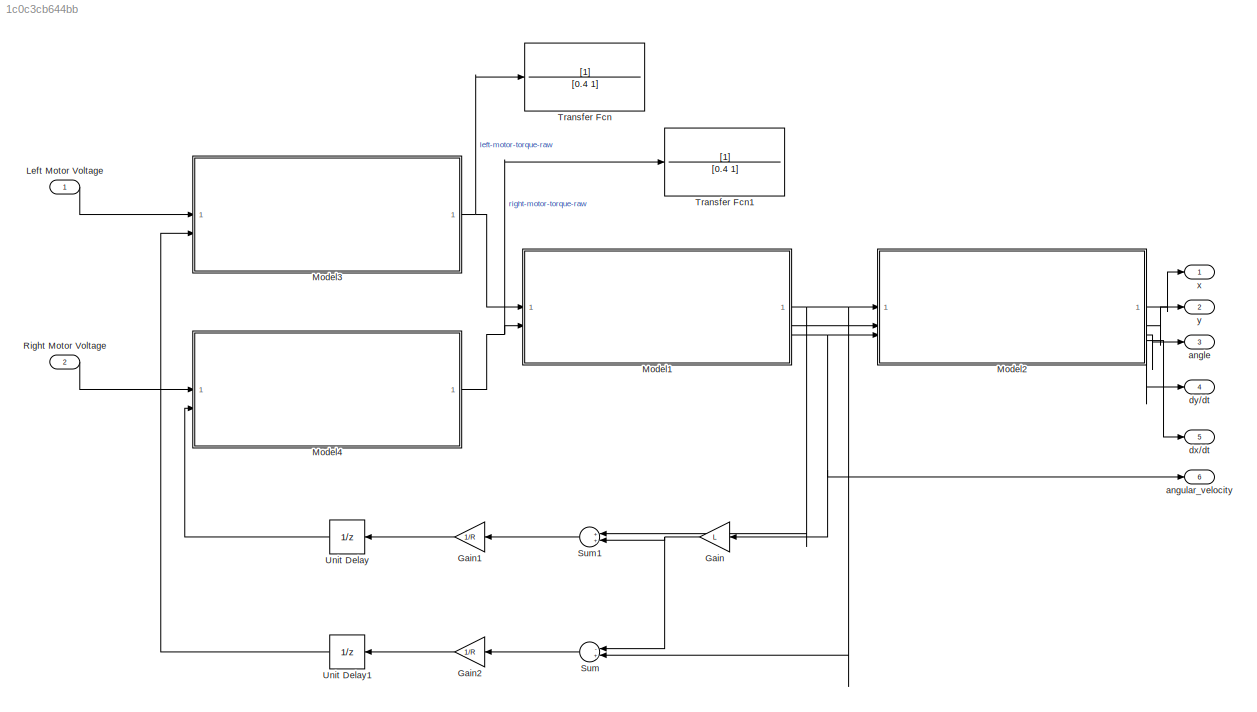
MODEL slx_1c0c3cb644bb
KIND model
CONFIG AbsTol = auto
CONFIG EnableMultiTasking = off
CONFIG FixedStep = 0.01
CONFIG MaxStep = auto
CONFIG MinStep = auto
CONFIG RelTol = 1e-3
CONFIG SampleTimeConstraint = Unconstrained
CONFIG SolverName = VariableStepAuto
CONFIG StartTime = 0.0
CONFIG StopTime = 10.0
BLOCK [Gain] Gain
  Gain = L
  NameLocation = top
BLOCK [Gain] Gain1
  Gain = 1/R
  NameLocation = top
BLOCK [Gain] Gain2
  Gain = 1/R
  NameLocation = top
BLOCK [Inport] Left Motor Voltage
BLOCK [ModelReference] Model1
  ModelNameDialog = DynamicPhysicalModel.slx
  ModelReferenceVersion = 3.4
BLOCK [ModelReference] Model2
  ModelNameDialog = KinematicModel2.slx
  ModelReferenceVersion = 3.2
  PortSchema = {"entries":[{"content":{"sides":[{"content":{"connectorIds":["In1","In2","In3"]},"type":"ConnectorPlacement.EquallySpacedRectSide","uuid":"40e04a13-7a28-418a-9369-3121e9e226aa"},{"content":{"connectorIds":["Out1","Out2","Out3","Out5","Out4"],"side":"RIGHT"},"type":"ConnectorPlacement.EquallySpacedRectSide","uuid":"cc1bc98a-6aae-4b07-b02a-e9b2983d00de"},{"content":{"side":"TOP"},"type":"ConnectorPl...<+262ch>
BLOCK [ModelReference] Model3
  ModelNameDialog = DCMotorModel.slx
  ModelReferenceVersion = 3.3
BLOCK [ModelReference] Model4
  ModelNameDialog = DCMotorModel.slx
  ModelReferenceVersion = 3.3
BLOCK [Inport] Right Motor Voltage
  Port = 2
BLOCK [Sum] Sum
  Inputs = -+|
  NameLocation = top
BLOCK [Sum] Sum1
  Inputs = ++|
  NameLocation = top
BLOCK [TransferFcn] Transfer Fcn
  Denominator = [0.4 1]
BLOCK [TransferFcn] Transfer Fcn1
  Denominator = [0.4 1]
BLOCK [UnitDelay] Unit Delay
  HasFrameUpgradeWarning = on
  SampleTime = -1
BLOCK [UnitDelay] Unit Delay1
  HasFrameUpgradeWarning = on
  SampleTime = -1
BLOCK [Outport] angle
  Port = 3
BLOCK [Outport] angular_velocity
  Port = 6
BLOCK [Outport] dx//dt
  Port = 5
BLOCK [Outport] dy//dt
  Port = 4
BLOCK [Outport] x
BLOCK [Outport] y
  Port = 2
LINE Gain1:1 -> Unit Delay:1
LINE Gain2:1 -> Unit Delay1:1
NET Gain:1 -> Sum1:2, Sum:1
LINE Left Motor Voltage:1 -> Model3:1
NET Model1:1 -> Model2:1, Sum1:1, Sum:2
LINE Model1:2 -> Model2:2
NET Model1:3 -> Gain:1, Model2:3, angular_velocity:1
LINE Model2:1 -> x:1
LINE Model2:2 -> y:1
LINE Model2:3 -> angle:1
LINE Model2:4 -> dx//dt:1
LINE Model2:5 -> dy//dt:1
NET Model3:1 -> Model1:1, Transfer Fcn:1
NET Model4:1 -> Model1:2, Transfer Fcn1:1
LINE Right Motor Voltage:1 -> Model4:1
LINE Sum1:1 -> Gain1:1
LINE Sum:1 -> Gain2:1
LINE Unit Delay1:1 -> Model3:2
LINE Unit Delay:1 -> Model4:2
note: NET lines group one-source signal fan-out (src -> all destinations, sorted); 1:1 wires keep LINE
